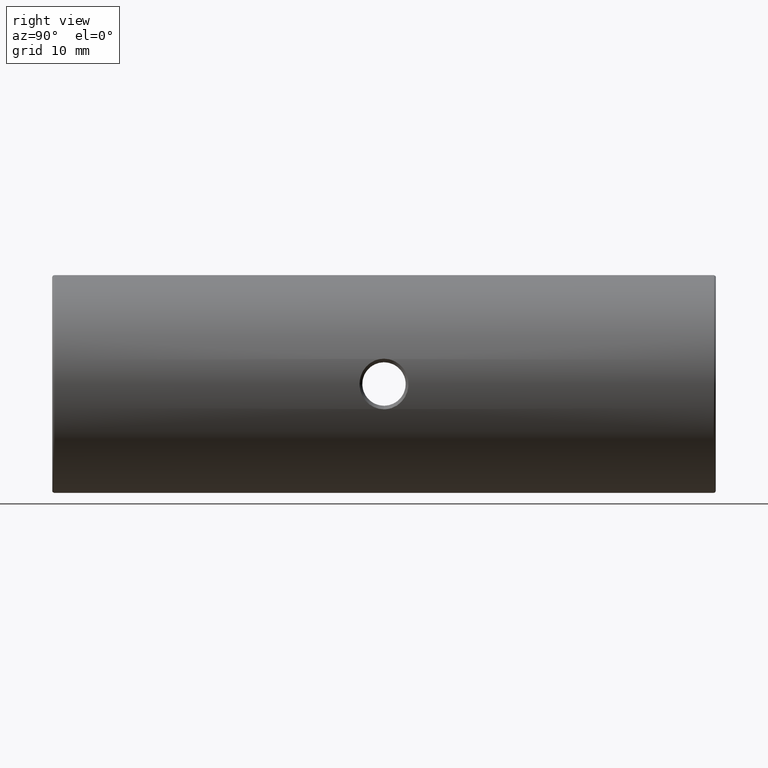
[diagram: clean part render]
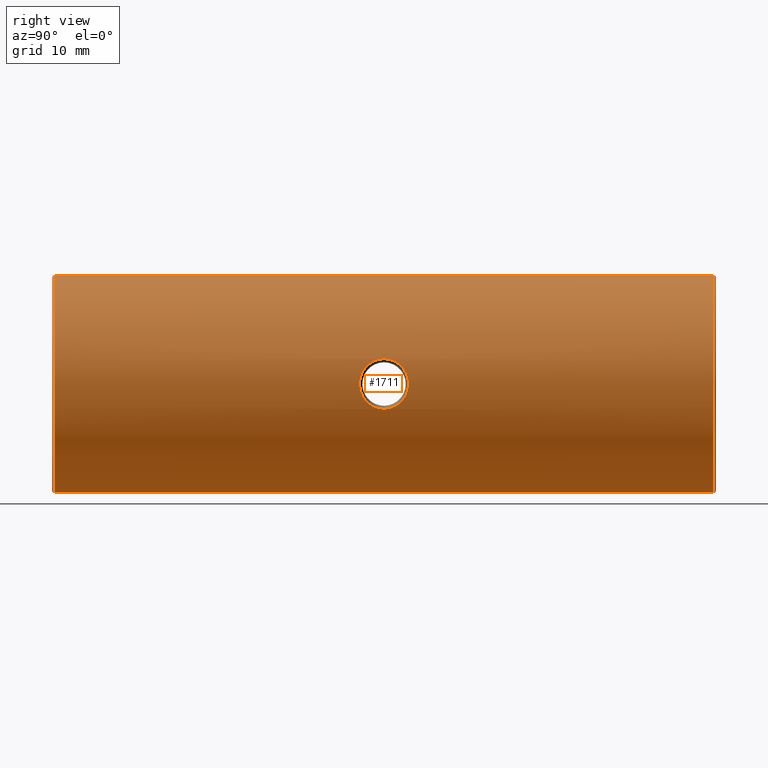
[diagram: same view with one face highlighted and labeled with its STEP entity id]
A machine part, right view. The second image highlights one B-rep face of the part: STEP entity #1711.
In plain terms, the highlighted cylindrical surface (partial cylindrical patch) has radius 12.5 mm, axis along (-0, -1, -0).
Its self-contained STEP definition (entity closure, byte-faithful):
#24 = CARTESIAN_POINT ( 'NONE',  ( -10.01393814977555685, -1.376641194413124270, 50.47655221270640169 ) ) ;
#119 = ORIENTED_EDGE ( 'NONE', *, *, #2500, .T. ) ;
#149 = CARTESIAN_POINT ( 'NONE',  ( -10.01384831664376485, 4.173523746012540059, 50.47415274408398034 ) ) ;
#178 = CIRCLE ( 'NONE', #1850, 12.49999999999999645 ) ;
#241 = CARTESIAN_POINT ( 'NONE',  ( -10.02675186171656208, -1.322443306122871975, 50.75721055769032120 ) ) ;
#260 = CARTESIAN_POINT ( 'NONE',  ( -10.34847154019207238, 1.401086072872717248, 52.90927974513800791 ) ) ;
#263 = DIRECTION ( 'NONE',  ( 0.0000000000000000000, 1.000000000000000000, 0.0000000000000000000 ) ) ;
#351 = CARTESIAN_POINT ( 'NONE',  ( -10.15294739806568280, 3.517539805018281562, 51.92107485664977418 ) ) ;
#416 = CARTESIAN_POINT ( 'NONE',  ( -10.13051884921005730, 3.634910052899583466, 51.77268452493004958 ) ) ;
#497 = CARTESIAN_POINT ( 'NONE',  ( -10.28120580034534548, 0.1491743862975422330, 47.38666087815096972 ) ) ;
#516 = CARTESIAN_POINT ( 'NONE',  ( -10.15310274899031207, -0.7201770142864681867, 51.92207674295870845 ) ) ;
#523 = CARTESIAN_POINT ( 'NONE',  ( -22.50520183104453409, 39.49825218476939170, 50.00000000000000000 ) ) ;
#530 = EDGE_CURVE ( 'NONE', #3078, #2533, #833, .T. ) ;
#538 = CARTESIAN_POINT ( 'NONE',  ( -10.00959453157194368, -1.395018423928524598, 49.61878162572888584 ) ) ;
#547 = ORIENTED_EDGE ( 'NONE', *, *, #2698, .T. ) ;
#572 = B_SPLINE_CURVE_WITH_KNOTS ( 'NONE', 3,
 ( #1864, #1594, #2667, #3309, #1983, #3294, #2264, #351, #416, #1416, #2545, #629, #1186, #149, #1720, #1167, #3049, #2785, #2018, #1701, #647, #1430, #904, #1951, #1737, #1966, #1448, #2509, #2490, #2769 ),
 .UNSPECIFIED., .F., .F.,
 ( 4, 2, 2, 2, 2, 2, 2, 2, 2, 2, 2, 2, 2, 2, 4 ),
 ( 0.5000000000000000000, 0.5625000000000011102, 0.5937500000000017764, 0.6250000000000023315, 0.6562500000000028866, 0.6875000000000034417, 0.7187500000000041078, 0.7343750000000044409, 0.7500000000000047740, 0.7812500000000042188, 0.8125000000000037748, 0.8750000000000028866, 0.9062500000000021094, 0.9375000000000012212, 1.000000000000000000 ),
 .UNSPECIFIED. ) ;
#575 = CARTESIAN_POINT ( 'NONE',  ( -10.22067027172154852, -0.3289239818345576216, 52.32705980215973085 ) ) ;
#587 = CARTESIAN_POINT ( 'NONE',  ( -22.50520183104453409, 39.49825218476939170, 37.50000000000000711 ) ) ;
#629 = CARTESIAN_POINT ( 'NONE',  ( -10.03912386684493185, 4.066135811482905815, 50.93725250157554285 ) ) ;
#647 = CARTESIAN_POINT ( 'NONE',  ( -10.03956905277293110, 4.064168843869365944, 49.05718252096284715 ) ) ;
#655 = CARTESIAN_POINT ( 'NONE',  ( -10.34847189391649813, 1.398252184769410045, 47.09071877678783125 ) ) ;
#726 = CARTESIAN_POINT ( 'NONE',  ( -10.22044804821624808, -0.3177678143217524953, 47.68777784866585279 ) ) ;
#735 = VERTEX_POINT ( 'NONE', #1571 ) ;
#786 = DIRECTION ( 'NONE',  ( 0.0000000000000000000, 0.0000000000000000000, -1.000000000000000000 ) ) ;
#814 = CARTESIAN_POINT ( 'NONE',  ( -10.00520407681040780, -1.413074357631346034, 50.09552809953440544 ) ) ;
#833 = CIRCLE ( 'NONE', #3187, 12.49999999999999645 ) ;
#904 = CARTESIAN_POINT ( 'NONE',  ( -10.13120772189609475, 3.643678481381411594, 48.20895563094942560 ) ) ;
#985 = CARTESIAN_POINT ( 'NONE',  ( -10.03928546547295930, -1.268904155931856348, 49.06091485622427939 ) ) ;
#1037 = CARTESIAN_POINT ( 'NONE',  ( -10.00519734990737497, -1.413097615887278780, 49.80982674692150880 ) ) ;
#1043 = FACE_BOUND ( 'NONE', #3317, .T. ) ;
#1080 = DIRECTION ( 'NONE',  ( 0.0000000000000000000, 0.0000000000000000000, 1.000000000000000000 ) ) ;
#1167 = CARTESIAN_POINT ( 'NONE',  ( -10.00627509750673028, 4.205142563667229716, 50.18968306945497204 ) ) ;
#1186 = CARTESIAN_POINT ( 'NONE',  ( -10.02657681141778845, 4.119691500564679032, 50.75422238455542612 ) ) ;
#1219 = CARTESIAN_POINT ( 'NONE',  ( -10.08961095988674117, -1.040983855349601805, 48.54098388032059574 ) ) ;
#1250 = CARTESIAN_POINT ( 'NONE',  ( -10.13104527353949003, -0.8357329462834370837, 48.22352196528750312 ) ) ;
#1340 = CARTESIAN_POINT ( 'NONE',  ( -10.08992494498989601, -1.039449521860696501, 51.46152594154584392 ) ) ;
#1346 = CARTESIAN_POINT ( 'NONE',  ( -22.50520183104453409, 39.24825218476939170, 50.00000000000000000 ) ) ;
#1416 = CARTESIAN_POINT ( 'NONE',  ( -10.08950009458221686, 3.837971256541931719, 51.45792308337470189 ) ) ;
#1430 = CARTESIAN_POINT ( 'NONE',  ( -10.08673579313784785, 3.852910402445475224, 48.53189826260302198 ) ) ;
#1448 = CARTESIAN_POINT ( 'NONE',  ( -10.28138215996619920, 2.645685024799237617, 47.38584113131452114 ) ) ;
#1503 = CYLINDRICAL_SURFACE ( 'NONE', #2272, 12.49999999999999645 ) ;
#1516 = B_SPLINE_CURVE_WITH_KNOTS ( 'NONE', 3,
 ( #1835, #2853, #2900, #497, #3405, #726, #1568, #2643, #1250, #1219, #3388, #985, #2433, #538, #1037, #814, #2697, #2939, #24, #241, #1608, #2121, #1340, #2378, #516, #575, #2716, #1856, #3181, #3444, #2994, #260 ),
 .UNSPECIFIED., .F., .F.,
 ( 4, 2, 2, 2, 2, 2, 2, 2, 2, 2, 2, 2, 2, 2, 2, 4 ),
 ( 0.0000000000000000000, 0.06249999999999955591, 0.09374999999999955591, 0.1249999999999995559, 0.1562499999999995559, 0.1874999999999995837, 0.2187499999999996114, 0.2499999999999996669, 0.2656250000000002220, 0.2812500000000007772, 0.3125000000000008327, 0.3437500000000008882, 0.3750000000000009437, 0.4375000000000002776, 0.4687500000000001665, 0.5000000000000000000 ),
 .UNSPECIFIED. ) ;
#1568 = CARTESIAN_POINT ( 'NONE',  ( -10.19775323582144821, -0.4616773628365393733, 47.81021797962696951 ) ) ;
#1571 = CARTESIAN_POINT ( 'NONE',  ( -22.50520183104453409, 39.24825218476939170, 37.50000000000000711 ) ) ;
#1594 = CARTESIAN_POINT ( 'NONE',  ( -10.34839696664155184, 1.768149378118664572, 52.90896813174228441 ) ) ;
#1608 = CARTESIAN_POINT ( 'NONE',  ( -10.03926934904703572, -1.268979855296304970, 50.93906143858725954 ) ) ;
#1659 = LINE ( 'NONE', #587, #2876 ) ;
#1690 = ORIENTED_EDGE ( 'NONE', *, *, #2035, .T. ) ;
#1701 = CARTESIAN_POINT ( 'NONE',  ( -10.02677590330629265, 4.118849129136686216, 49.24228715506755094 ) ) ;
#1711 = ADVANCED_FACE ( 'NONE', ( #1043, #3190 ), #1503, .T. ) ;
#1713 = EDGE_CURVE ( 'NONE', #2461, #3350, #572, .T. ) ;
#1720 = CARTESIAN_POINT ( 'NONE',  ( -10.01064152821888165, 4.186927187743346934, 50.38093568517158616 ) ) ;
#1737 = CARTESIAN_POINT ( 'NONE',  ( -10.22069015971959871, 3.112715133756644992, 47.68647738586778217 ) ) ;
#1744 = ORIENTED_EDGE ( 'NONE', *, *, #2073, .F. ) ;
#1765 = EDGE_LOOP ( 'NONE', ( #547, #119, #2550, #1744 ) ) ;
#1835 = CARTESIAN_POINT ( 'NONE',  ( -10.34847189391649813, 1.398252184769410045, 47.09071877678783125 ) ) ;
#1850 = AXIS2_PLACEMENT_3D ( 'NONE', #1346, #2945, #1080 ) ;
#1856 = CARTESIAN_POINT ( 'NONE',  ( -10.31357678706535097, 0.4914312575570852215, 52.76042022121076513 ) ) ;
#1864 = CARTESIAN_POINT ( 'NONE',  ( -10.34847154019207238, 1.401086072872717248, 52.90927974513800791 ) ) ;
#1951 = CARTESIAN_POINT ( 'NONE',  ( -10.19821154778436778, 3.255369150858355098, 47.80765360765528271 ) ) ;
#1966 = CARTESIAN_POINT ( 'NONE',  ( -10.26240494945866111, 2.806784448255719155, 47.47501714753327207 ) ) ;
#1983 = CARTESIAN_POINT ( 'NONE',  ( -10.26171685817135071, 2.812244921809346820, 52.52163236104671995 ) ) ;
#2018 = CARTESIAN_POINT ( 'NONE',  ( -10.00964959995888037, 4.191281611658460804, 49.61735547875863261 ) ) ;
#2035 = EDGE_CURVE ( 'NONE', #3350, #2461, #1516, .T. ) ;
#2073 = EDGE_CURVE ( 'NONE', #735, #2533, #1659, .T. ) ;
#2121 = CARTESIAN_POINT ( 'NONE',  ( -10.07084455743867402, -1.127609090042507534, 51.29153715528707380 ) ) ;
#2124 = DIRECTION ( 'NONE',  ( 0.0000000000000000000, 0.0000000000000000000, 1.000000000000000000 ) ) ;
#2180 = LINE ( 'NONE', #2403, #3357 ) ;
#2264 = CARTESIAN_POINT ( 'NONE',  ( -10.19795443142408331, 3.257006472510308281, 52.19097686579144124 ) ) ;
#2272 = AXIS2_PLACEMENT_3D ( 'NONE', #523, #2926, #786 ) ;
#2378 = CARTESIAN_POINT ( 'NONE',  ( -10.13100719876847222, -0.8359003745247127748, 51.77608148398781651 ) ) ;
#2403 = CARTESIAN_POINT ( 'NONE',  ( -22.50520183104453409, 39.49825218476939170, 62.50000000000000000 ) ) ;
#2433 = CARTESIAN_POINT ( 'NONE',  ( -10.02677036316137205, -1.322359924746528970, 49.24218911801307996 ) ) ;
#2438 = CARTESIAN_POINT ( 'NONE',  ( -10.34847154019207238, 1.401086072872717248, 52.90927974513800791 ) ) ;
#2461 = VERTEX_POINT ( 'NONE', #2438 ) ;
#2490 = CARTESIAN_POINT ( 'NONE',  ( -10.34848894705066868, 1.765824933951912756, 47.09064751851791897 ) ) ;
#2498 = CARTESIAN_POINT ( 'NONE',  ( -22.50520183104453409, -36.45174781523061114, 62.50000000000000000 ) ) ;
#2500 = EDGE_CURVE ( 'NONE', #3123, #3078, #2180, .T. ) ;
#2509 = CARTESIAN_POINT ( 'NONE',  ( -10.32961809028130240, 2.135293394376665432, 47.16670927387671952 ) ) ;
#2533 = VERTEX_POINT ( 'NONE', #3242 ) ;
#2545 = CARTESIAN_POINT ( 'NONE',  ( -10.07078360413760798, 3.924386101521311510, 51.29104044072109758 ) ) ;
#2550 = ORIENTED_EDGE ( 'NONE', *, *, #530, .T. ) ;
#2609 = CARTESIAN_POINT ( 'NONE',  ( -22.50520183104453409, -36.45174781523061114, 50.00000000000000000 ) ) ;
#2643 = CARTESIAN_POINT ( 'NONE',  ( -10.15309026959171845, -0.7201977725374633099, 48.07808007600954170 ) ) ;
#2667 = CARTESIAN_POINT ( 'NONE',  ( -10.32931247819756315, 2.139314989384234700, 52.83196653079254190 ) ) ;
#2697 = CARTESIAN_POINT ( 'NONE',  ( -10.00627837453286695, -1.408621410739443469, 50.18986673000133436 ) ) ;
#2698 = EDGE_CURVE ( 'NONE', #735, #3123, #178, .T. ) ;
#2703 = DIRECTION ( 'NONE',  ( -0.0000000000000000000, -1.000000000000000000, -0.0000000000000000000 ) ) ;
#2716 = CARTESIAN_POINT ( 'NONE',  ( -10.26514075146263849, -0.02094479335833370273, 52.54036784948614525 ) ) ;
#2769 = CARTESIAN_POINT ( 'NONE',  ( -10.34847189391649813, 1.398252184769410045, 47.09071877678783125 ) ) ;
#2785 = CARTESIAN_POINT ( 'NONE',  ( -10.00523732347766348, 4.209438793481305119, 49.80666152458059059 ) ) ;
#2816 = ORIENTED_EDGE ( 'NONE', *, *, #1713, .T. ) ;
#2853 = CARTESIAN_POINT ( 'NONE',  ( -10.34845463298328383, 1.026200419255892005, 47.09079090336737039 ) ) ;
#2876 = VECTOR ( 'NONE', #3252, 1000.000000000000000 ) ;
#2900 = CARTESIAN_POINT ( 'NONE',  ( -10.32954370539411215, 0.6599845766527184798, 47.16701032394605875 ) ) ;
#2926 = DIRECTION ( 'NONE',  ( -0.0000000000000000000, -1.000000000000000000, -0.0000000000000000000 ) ) ;
#2939 = CARTESIAN_POINT ( 'NONE',  ( -10.01064372293459215, -1.390416779110403844, 50.38099164027958210 ) ) ;
#2945 = DIRECTION ( 'NONE',  ( -0.0000000000000000000, -1.000000000000000000, -0.0000000000000000000 ) ) ;
#2994 = CARTESIAN_POINT ( 'NONE',  ( -10.34850882696733620, 1.217554420249754132, 52.90943555183587677 ) ) ;
#3049 = CARTESIAN_POINT ( 'NONE',  ( -10.00518440457558533, 4.209659017148219995, 50.09320650245474127 ) ) ;
#3078 = VERTEX_POINT ( 'NONE', #2498 ) ;
#3123 = VERTEX_POINT ( 'NONE', #3365 ) ;
#3181 = CARTESIAN_POINT ( 'NONE',  ( -10.32641410112886149, 0.6672506221454009845, 52.81577975407486036 ) ) ;
#3187 = AXIS2_PLACEMENT_3D ( 'NONE', #2609, #263, #2124 ) ;
#3190 = FACE_OUTER_BOUND ( 'NONE', #1765, .T. ) ;
#3242 = CARTESIAN_POINT ( 'NONE',  ( -22.50520183104453409, -36.45174781523061114, 37.50000000000000711 ) ) ;
#3252 = DIRECTION ( 'NONE',  ( -0.0000000000000000000, -1.000000000000000000, -0.0000000000000000000 ) ) ;
#3294 = CARTESIAN_POINT ( 'NONE',  ( -10.22016270264847826, 3.116156845149093524, 52.31070717725705777 ) ) ;
#3309 = CARTESIAN_POINT ( 'NONE',  ( -10.28116133935255760, 2.647623010403181709, 52.61312323638789223 ) ) ;
#3317 = EDGE_LOOP ( 'NONE', ( #1690, #2816 ) ) ;
#3350 = VERTEX_POINT ( 'NONE', #655 ) ;
#3357 = VECTOR ( 'NONE', #2703, 1000.000000000000000 ) ;
#3365 = CARTESIAN_POINT ( 'NONE',  ( -22.50520183104453409, 39.24825218476939170, 62.50000000000000000 ) ) ;
#3388 = CARTESIAN_POINT ( 'NONE',  ( -10.07065230752211882, -1.128473363231500937, 48.71045361163167087 ) ) ;
#3405 = CARTESIAN_POINT ( 'NONE',  ( -10.26201457400353334, -0.01335821449700156684, 47.47692398630896093 ) ) ;
#3444 = CARTESIAN_POINT ( 'NONE',  ( -10.34401387725316468, 1.031674240332165038, 52.89084654493490234 ) ) ;